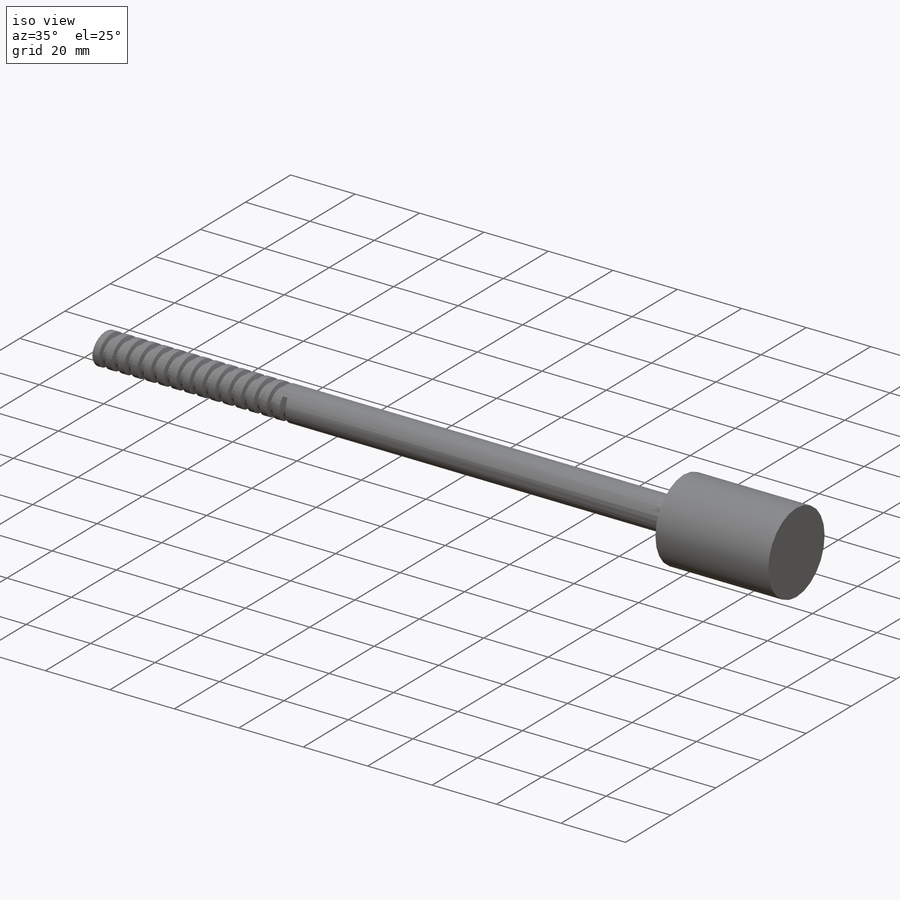
[diagram: iso view]
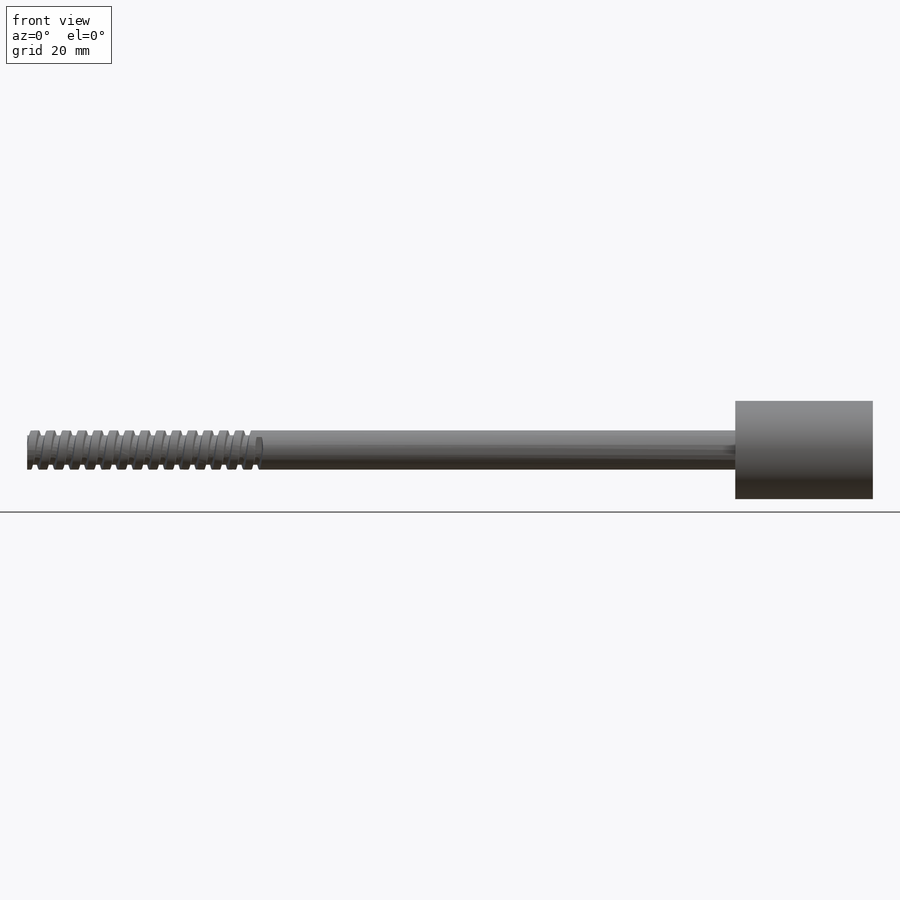
[diagram: front view]
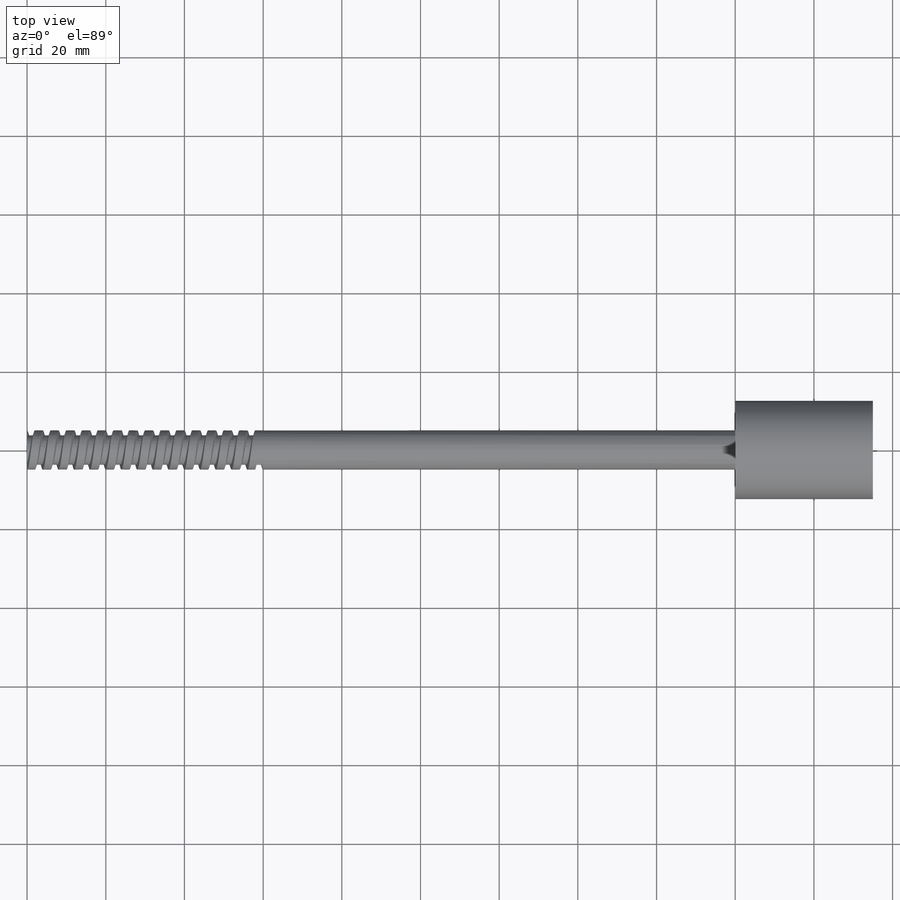
[diagram: top view]
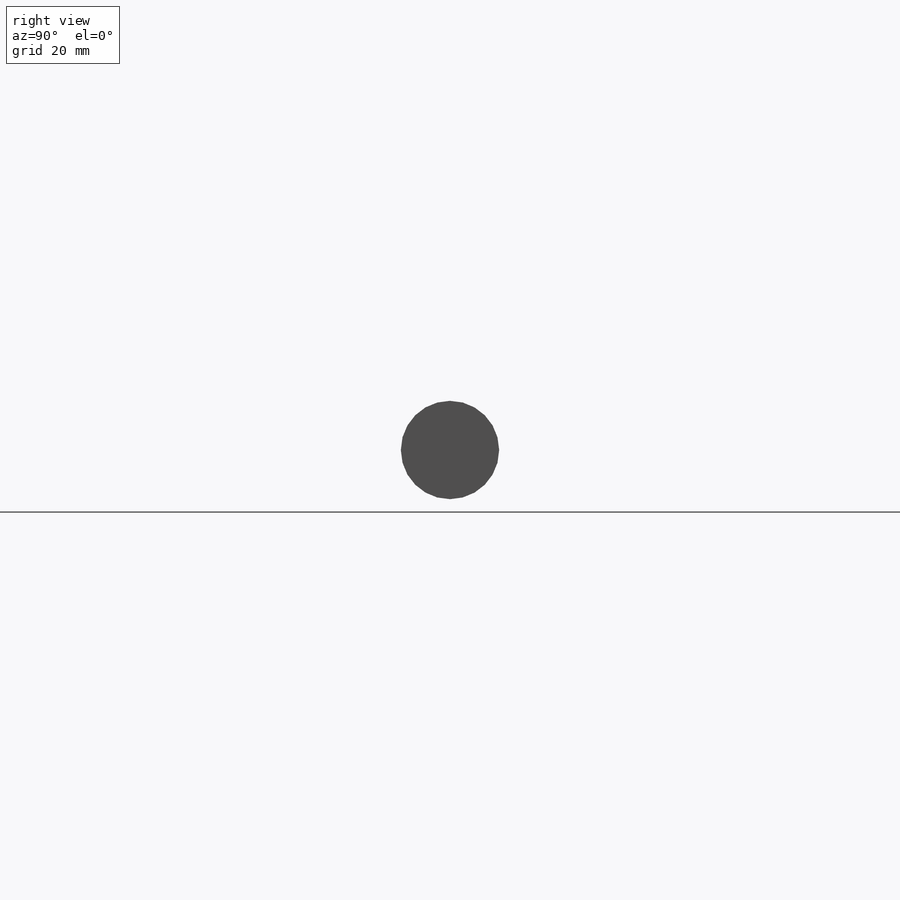
[diagram: right view]
SOLIDWORKS PART (.sldprt)
format: sldprt  version: not decoded by parser v0  size: 458,240 bytes
history: native  units: mm
features: sketch x4, plane x3, material x1, revolve x1, helix x1, sweep x1, cut_extrude x1 (+8 scaffold rows collapsed)
feature tree (20):
  scaffold x8  (default folders/planes/origin — collapsed)
  material  "Material <nicht festgelegt>"
  plane  "Ebene vorne"
  plane  "Ebene oben"
  plane  "Ebene rechts"
  sketch  "Skizze1"  dims[D1=180.0mm D2=215.0mm D3=10.0mm D4=25.0mm]
  revolve  "Rotation1"  Angle=360deg
  sketch  "Skizze2"  dims[D1=0.0mm]
  helix  "Spirale/Helix1"  Pitch=60mm
  sketch  "Skizze3"  dims[c1.D1=~1.356331mm c2.D1=30.0deg c2.D2=8.0mm c2.D3=10.5mm c2.D4=2.0mm c2.D5=2.5mm c2.D6=4.625mm c3.D2=4.5mm c3.D3=10.0mm c3.D6=1.25mm c3.D5=0.75mm c4.D2=0.5mm c4.D5=1.0mm]
  sweep  "Schnitt-Austragung3"
  sketch  "Skizze4"  dims[D1=0.0mm]
  cut_extrude  "Schnitt-Linear austragen1"  [1 undecoded]
decode coverage: 6 of 8 modeling features carry decoded parameters
note: ~ marks probable driven/reference dimensions
note: 1 parameter value undecoded
note: suppression state not decoded; provenance and decode notes live in map.json
